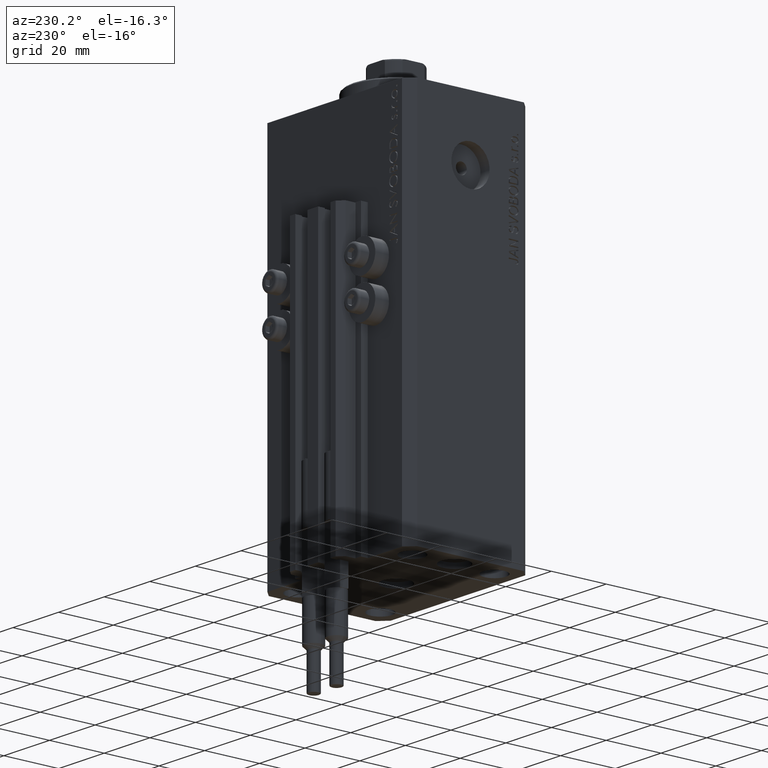
[diagram: clean part render]
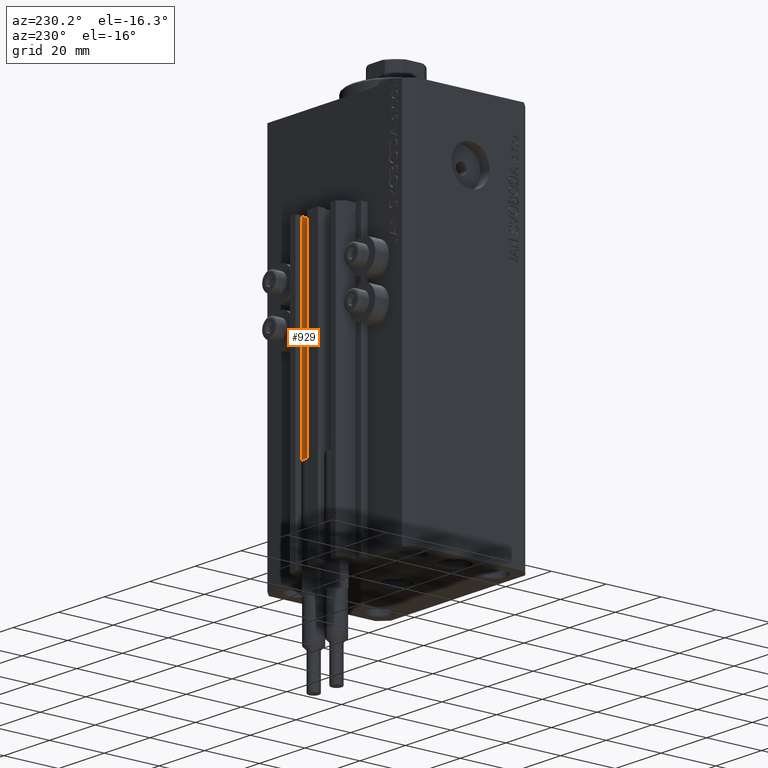
[diagram: same view with one face highlighted and labeled with its STEP entity id]
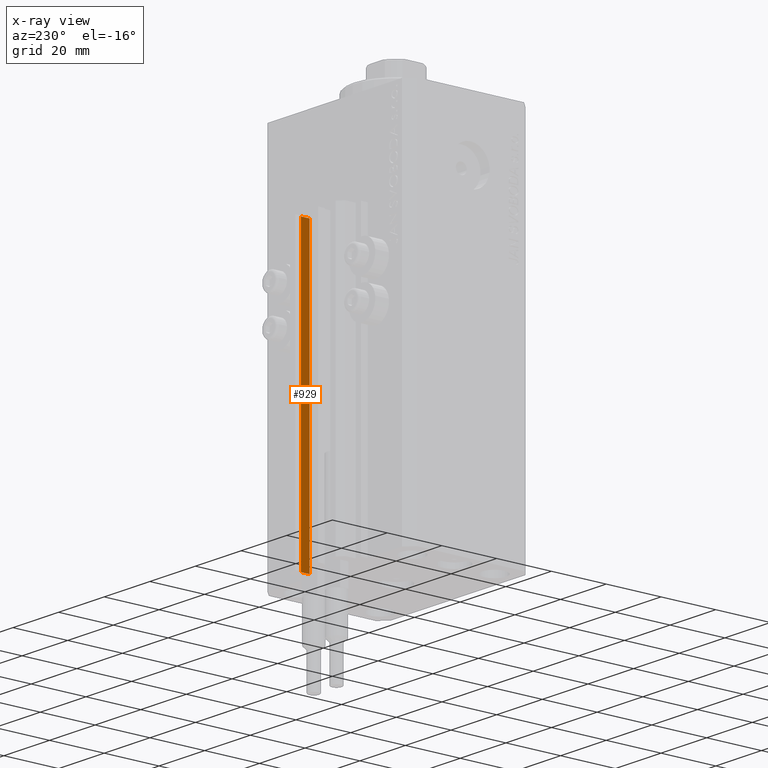
[diagram: x-ray of the same camera — body ghosted, the highlighted face saturated]
A machine part, auxiliary view. The second image highlights one B-rep face of the part: STEP entity #929.
The next image is the same camera in x-ray: the body ghosted, the highlighted face saturated — about 0% of this face is hidden behind the body in this view.
In plain terms, the highlighted planar face has unit normal (-1, 0, 0).
Its self-contained STEP definition (entity closure, byte-faithful):
#59 = VERTEX_POINT ( 'NONE', #22554 ) ;
#929 = ADVANCED_FACE ( 'NONE', ( #12102 ), #44558, .T. ) ;
#947 = CARTESIAN_POINT ( 'NONE',  ( 8.400000000000000355, 27.89999999999950475, -33.00000000000000000 ) ) ;
#3516 = ORIENTED_EDGE ( 'NONE', *, *, #39293, .T. ) ;
#3607 = CARTESIAN_POINT ( 'NONE',  ( 8.400000000000000355, 27.89999999999950475, -33.00000000000000000 ) ) ;
#4555 = DIRECTION ( 'NONE',  ( -5.421010862427496532E-16, -1.000000000000000000, 0.000000000000000000 ) ) ;
#4815 = DIRECTION ( 'NONE',  ( -1.000000000000000000, 5.421010862427497518E-16, 0.000000000000000000 ) ) ;
#5403 = CARTESIAN_POINT ( 'NONE',  ( 8.400000000000000355, 27.89999999999950475, -137.0000000000000000 ) ) ;
#5474 = VECTOR ( 'NONE', #4555, 1000.000000000000000 ) ;
#10035 = EDGE_CURVE ( 'NONE', #26015, #59, #36709, .T. ) ;
#10126 = LINE ( 'NONE', #24962, #25268 ) ;
#11692 = LINE ( 'NONE', #29710, #12074 ) ;
#11822 = VERTEX_POINT ( 'NONE', #11877 ) ;
#11877 = CARTESIAN_POINT ( 'NONE',  ( 8.400000000000000355, 24.69999999999949125, -137.0000000000000000 ) ) ;
#12074 = VECTOR ( 'NONE', #26522, 1000.000000000000000 ) ;
#12102 = FACE_OUTER_BOUND ( 'NONE', #24639, .T. ) ;
#14362 = DIRECTION ( 'NONE',  ( -5.421010862427496532E-16, -1.000000000000000000, 0.000000000000000000 ) ) ;
#16596 = ORIENTED_EDGE ( 'NONE', *, *, #28778, .T. ) ;
#16964 = DIRECTION ( 'NONE',  ( 0.000000000000000000, 0.000000000000000000, 1.000000000000000000 ) ) ;
#19662 = DIRECTION ( 'NONE',  ( -5.421010862427497518E-16, -1.000000000000000000, 0.000000000000000000 ) ) ;
#20297 = VERTEX_POINT ( 'NONE', #5403 ) ;
#22114 = CARTESIAN_POINT ( 'NONE',  ( 8.400000000000000355, 27.89999999999950475, -137.0000000000000000 ) ) ;
#22554 = CARTESIAN_POINT ( 'NONE',  ( 8.400000000000000355, 24.69999999999949125, -33.00000000000000000 ) ) ;
#23283 = CARTESIAN_POINT ( 'NONE',  ( 8.400000000000000355, 27.89999999999950475, -137.0000000000000000 ) ) ;
#24639 = EDGE_LOOP ( 'NONE', ( #40418, #46470, #3516, #16596 ) ) ;
#24962 = CARTESIAN_POINT ( 'NONE',  ( 8.400000000000000355, 24.69999999999949125, -137.0000000000000000 ) ) ;
#25093 = EDGE_CURVE ( 'NONE', #20297, #26015, #11692, .T. ) ;
#25268 = VECTOR ( 'NONE', #16964, 1000.000000000000000 ) ;
#26015 = VERTEX_POINT ( 'NONE', #947 ) ;
#26362 = VECTOR ( 'NONE', #14362, 1000.000000000000000 ) ;
#26522 = DIRECTION ( 'NONE',  ( 0.000000000000000000, 0.000000000000000000, 1.000000000000000000 ) ) ;
#28778 = EDGE_CURVE ( 'NONE', #11822, #59, #10126, .T. ) ;
#29710 = CARTESIAN_POINT ( 'NONE',  ( 8.400000000000000355, 27.89999999999950475, -137.0000000000000000 ) ) ;
#36384 = AXIS2_PLACEMENT_3D ( 'NONE', #23283, #4815, #19662 ) ;
#36507 = LINE ( 'NONE', #22114, #26362 ) ;
#36709 = LINE ( 'NONE', #3607, #5474 ) ;
#39293 = EDGE_CURVE ( 'NONE', #20297, #11822, #36507, .T. ) ;
#40418 = ORIENTED_EDGE ( 'NONE', *, *, #10035, .F. ) ;
#44558 = PLANE ( 'NONE',  #36384 ) ;
#46470 = ORIENTED_EDGE ( 'NONE', *, *, #25093, .F. ) ;